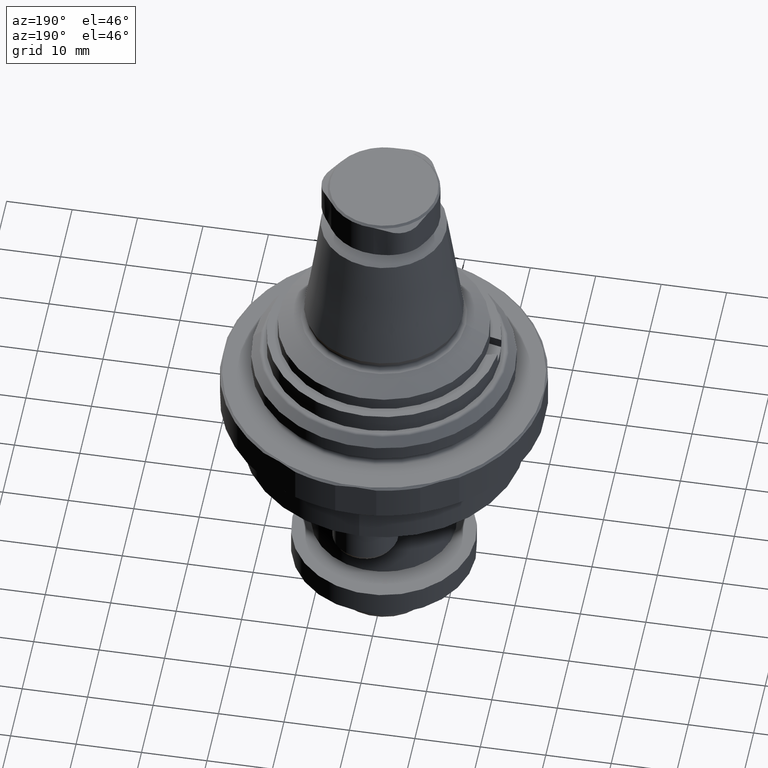
[diagram: clean part render]
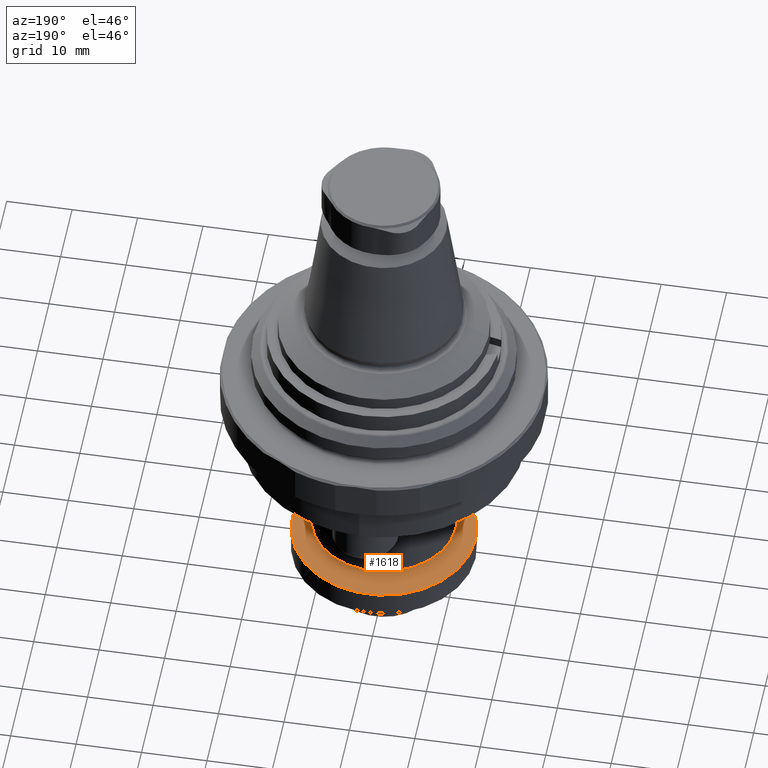
[diagram: same view with one face highlighted and labeled with its STEP entity id]
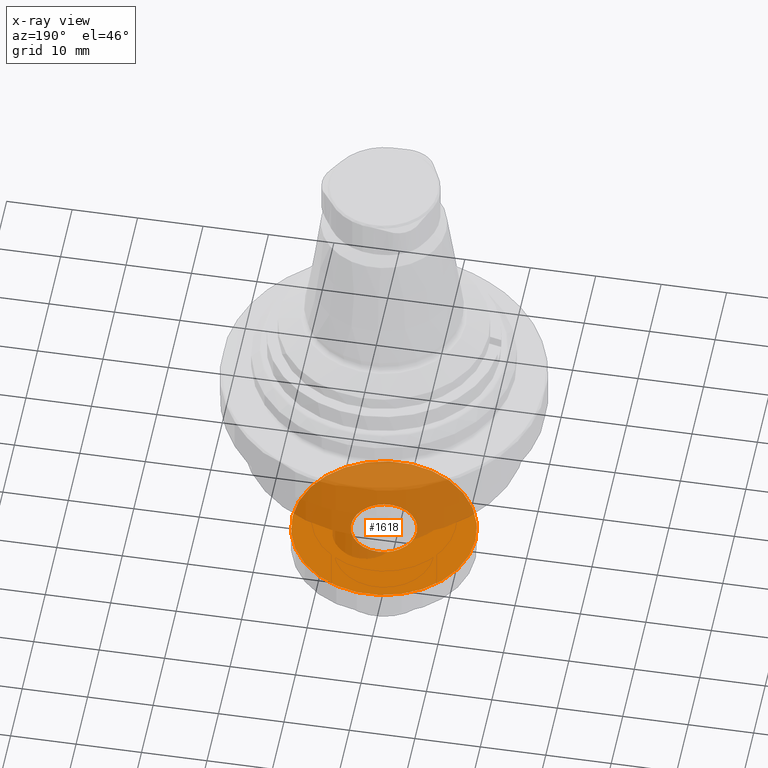
[diagram: x-ray of the same camera — body ghosted, the highlighted face saturated]
A machine part, auxiliary view. The second image highlights one B-rep face of the part: STEP entity #1618.
The next image is the same camera in x-ray: the body ghosted, the highlighted face saturated — about 52% of this face is hidden behind the body in this view.
In plain terms, the highlighted planar face has unit normal (0, 0, -1).
Its self-contained STEP definition (entity closure, byte-faithful):
#35=PLANE('',#1782);
#501=ORIENTED_EDGE('',*,*,#880,.T.);
#502=ORIENTED_EDGE('',*,*,#884,.F.);
#880=EDGE_CURVE('',#1066,#1066,#1179,.T.);
#884=EDGE_CURVE('',#1070,#1070,#1183,.T.);
#1066=VERTEX_POINT('',#2774);
#1070=VERTEX_POINT('',#2785);
#1179=CIRCLE('',#1774,5.);
#1183=CIRCLE('',#1781,14.);
#1294=EDGE_LOOP('',(#501));
#1295=EDGE_LOOP('',(#502));
#1454=FACE_BOUND('',#1294,.T.);
#1455=FACE_BOUND('',#1295,.T.);
#1618=ADVANCED_FACE('',(#1454,#1455),#35,.F.);
#1774=AXIS2_PLACEMENT_3D('',#2773,#2088,#2089);
#1781=AXIS2_PLACEMENT_3D('',#2784,#2102,#2103);
#1782=AXIS2_PLACEMENT_3D('',#2786,#2104,#2105);
#2088=DIRECTION('',(0.,1.05145690546658E-32,-1.));
#2089=DIRECTION('',(0.,1.,1.05145690546658E-32));
#2102=DIRECTION('',(0.,1.05145690546658E-32,-1.));
#2103=DIRECTION('',(-1.,1.44497044538006E-16,-1.23259516440783E-32));
#2104=DIRECTION('',(0.,1.05145690546658E-32,-1.));
#2105=DIRECTION('',(-1.,1.44497044538006E-16,-1.23259516440783E-32));
#2773=CARTESIAN_POINT('',(0.,1.05145690546658E-32,-35.));
#2774=CARTESIAN_POINT('',(0.,5.,-35.));
#2784=CARTESIAN_POINT('',(1.88567703456428E-24,-8.55713545927034E-8,-35.));
#2785=CARTESIAN_POINT('',(-14.,-8.55713525697448E-8,-35.));
#2786=CARTESIAN_POINT('',(-5.5,-8.55713537979696E-8,-35.));